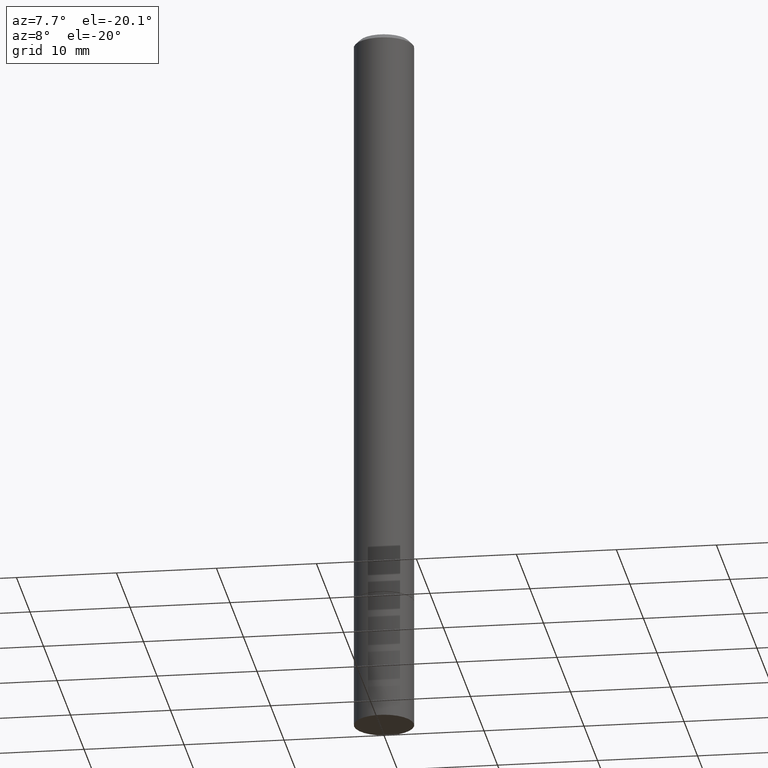
[diagram: clean part render]
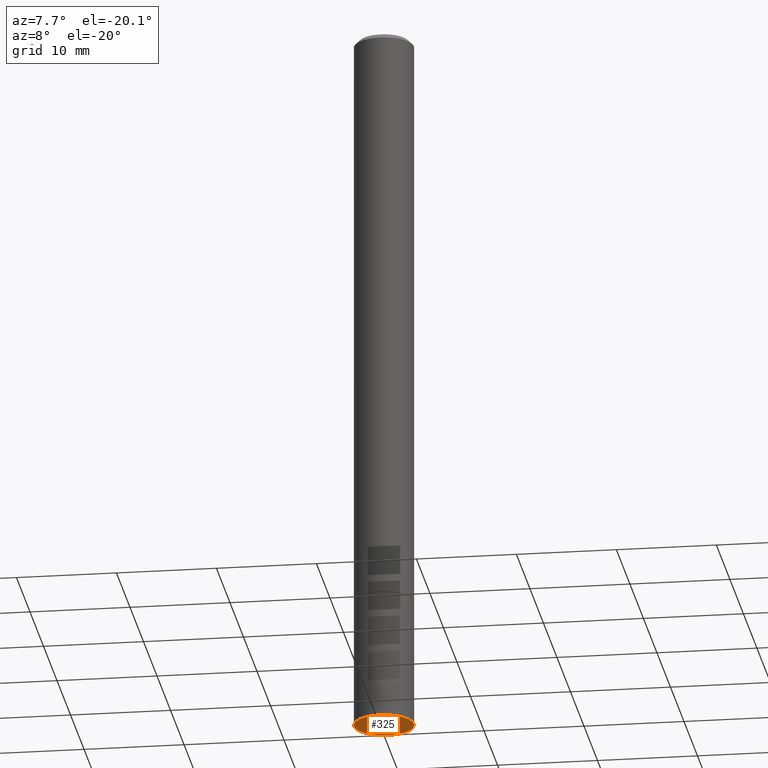
[diagram: same view with one face highlighted and labeled with its STEP entity id]
A machine part, auxiliary view. The second image highlights one B-rep face of the part: STEP entity #325.
In plain terms, the highlighted planar face has unit normal (0, -0, -1).
Its self-contained STEP definition (entity closure, byte-faithful):
#13 = PLANE ( 'NONE',  #159 ) ;
#17 = VERTEX_POINT ( 'NONE', #240 ) ;
#42 = DIRECTION ( 'NONE',  ( -2.445468806185136597E-29, 3.491481338843145583E-15, 1.000000000000000000 ) ) ;
#43 = EDGE_CURVE ( 'NONE', #17, #195, #269, .T. ) ;
#44 = CIRCLE ( 'NONE', #92, 0.1180999999999999966 ) ;
#54 = EDGE_CURVE ( 'NONE', #195, #17, #44, .T. ) ;
#57 = ORIENTED_EDGE ( 'NONE', *, *, #54, .F. ) ;
#73 = DIRECTION ( 'NONE',  ( -2.445468806185136597E-29, 3.491481338843145583E-15, 1.000000000000000000 ) ) ;
#81 = DIRECTION ( 'NONE',  ( 1.000000000000000000, -6.982962677686273021E-15, 0.000000000000000000 ) ) ;
#89 = ORIENTED_EDGE ( 'NONE', *, *, #43, .F. ) ;
#92 = AXIS2_PLACEMENT_3D ( 'NONE', #133, #73, #81 ) ;
#130 = CARTESIAN_POINT ( 'NONE',  ( 8.246878922348172879E-16, 0.1180999999999901018, -2.834600000000000453 ) ) ;
#133 = CARTESIAN_POINT ( 'NONE',  ( 6.931925878012387517E-29, -9.896953003084780885E-15, -2.834600000000000009 ) ) ;
#159 = AXIS2_PLACEMENT_3D ( 'NONE', #130, #239, #354 ) ;
#195 = VERTEX_POINT ( 'NONE', #245 ) ;
#211 = DIRECTION ( 'NONE',  ( 1.000000000000000000, -6.982962677686273021E-15, 0.000000000000000000 ) ) ;
#222 = AXIS2_PLACEMENT_3D ( 'NONE', #334, #42, #211 ) ;
#231 = EDGE_LOOP ( 'NONE', ( #57, #89 ) ) ;
#239 = DIRECTION ( 'NONE',  ( 2.438088387897960049E-29, -3.491481338843145188E-15, -1.000000000000000000 ) ) ;
#240 = CARTESIAN_POINT ( 'NONE',  ( -0.1180999999999999966, -8.164331957542140874E-15, -2.834600000000000009 ) ) ;
#245 = CARTESIAN_POINT ( 'NONE',  ( 0.1180999999999999966, -1.072164089531952915E-14, -2.834600000000000009 ) ) ;
#266 = FACE_OUTER_BOUND ( 'NONE', #231, .T. ) ;
#269 = CIRCLE ( 'NONE', #222, 0.1180999999999999966 ) ;
#325 = ADVANCED_FACE ( 'NONE', ( #266 ), #13, .T. ) ;
#334 = CARTESIAN_POINT ( 'NONE',  ( 6.931925878012387517E-29, -9.896953003084780885E-15, -2.834600000000000009 ) ) ;
#354 = DIRECTION ( 'NONE',  ( -1.000000000000000000, 6.982962677686265922E-15, -4.876176775795935793E-29 ) ) ;